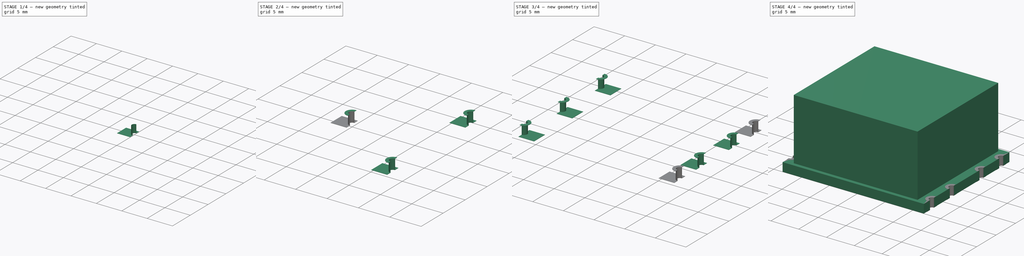
[diagram: build sequence overview — one tinted view per stage of 4, left to right]
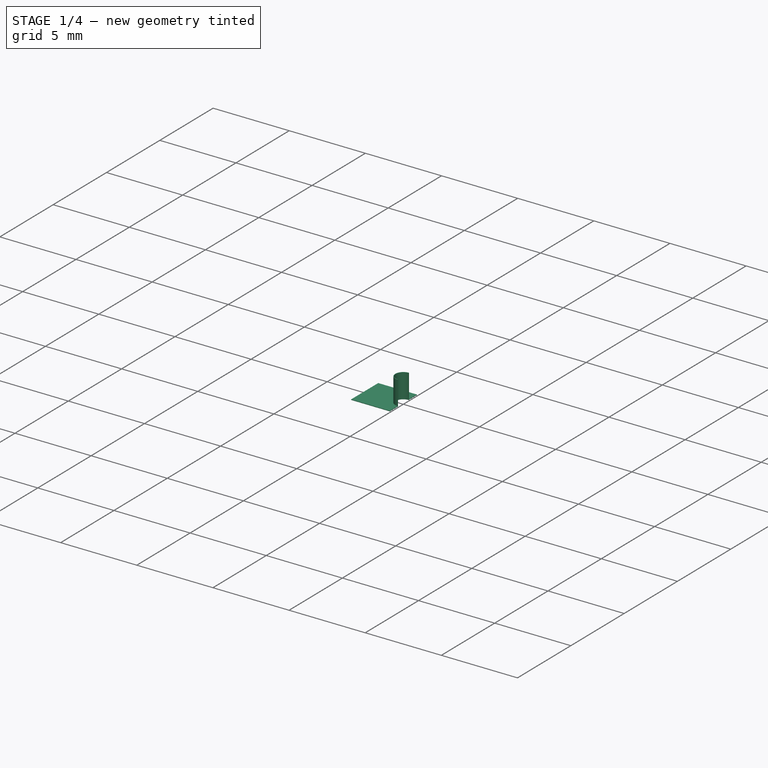
[diagram: stage 1 of 4 — iso view after this stage's code; geometry added in this stage tinted green]
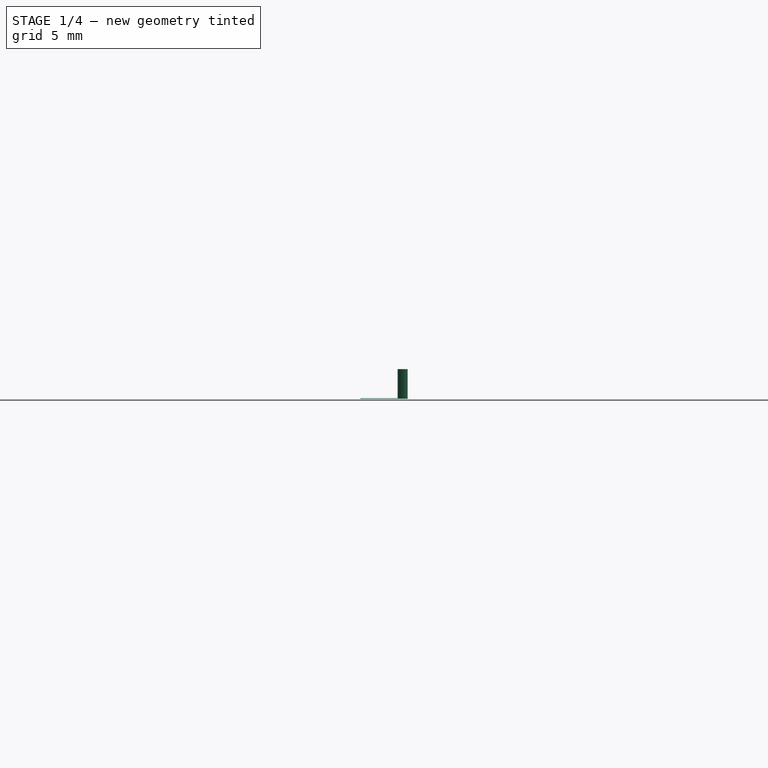
[diagram: stage 1 of 4 — front view after this stage's code; geometry added in this stage tinted green]
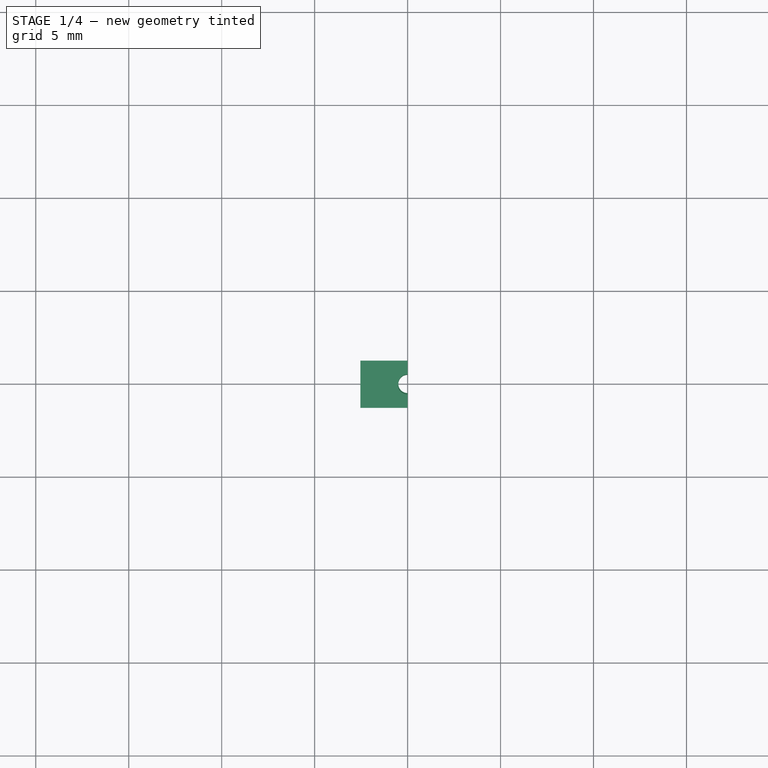
[diagram: stage 1 of 4 — top view after this stage's code; geometry added in this stage tinted green]
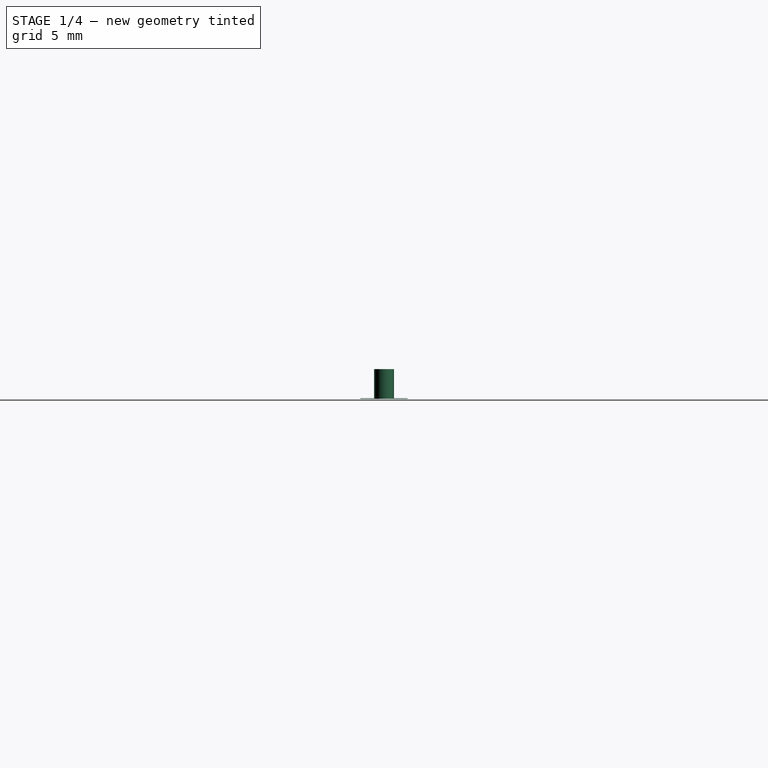
[diagram: stage 1 of 4 — right view after this stage's code; geometry added in this stage tinted green]
FCSTD DOCUMENT  (FreeCAD 1.0R38641 +468 (Git))
Label: cx210-1
License: All rights reserved
objects: Sketcher::SketchObject×5, PartDesign::Pad×5, PartDesign::Body×4, Part::FeaturePython×2, Spreadsheet::Sheet×1, Part::Mirroring×1, PartDesign::FeatureBase×1, Part::Compound×1
note: 35 computed .brp shape members not serialized (recipe doc carries the construction recipe); baked Part::Feature solids carry a one-line shape summary decoded from their .brp

FEATURE [PartDesign::Body] Body001
  AllowCompound = false
  Group = -> [Sketch003,Pad001]
  Origin = -> Origin001
  Tip = -> Pad001
FEATURE [Sketcher::SketchObject] Sketch004
  ArcFitTolerance = 1e-06
  AttachmentSupport = -> [XY_Plane002]
  FullyConstrained = true
  MakeInternals = false
  MapMode = 5
  expr: Constraints[11] = <<Master>>.pin_id
  sketch-geometry (7):
    g0: LineSegment StartX=-2.54 StartY=1.27 StartZ=0 EndX=-2.54 EndY=-1.27 EndZ=0
    g1: LineSegment StartX=-2.54 StartY=-1.27 StartZ=0 EndX=0 EndY=-1.27 EndZ=0
    g2: LineSegment StartX=0 StartY=-1.27 StartZ=0 EndX=0 EndY=-0.5 EndZ=0
    g3: LineSegment StartX=0 StartY=1.27 StartZ=0 EndX=-2.54 EndY=1.27 EndZ=0
    g4: ArcOfCircle CenterX=0 CenterY=0 CenterZ=0 NormalX=0 NormalY=0 NormalZ=1 AngleXU=0 Radius=0.5 StartAngle=1.5708 EndAngle=4.71239
    g5: LineSegment StartX=0 StartY=0.5 StartZ=0 EndX=0 EndY=1.27 EndZ=0
    g6: LineSegment [constr] StartX=0 StartY=0.5 StartZ=0 EndX=0 EndY=-0.5 EndZ=0
  constraints (19):
    c: Coincident(g0,g1)
    c: Coincident(g1,g2)
    c: Coincident(g5,g3)
    c: Coincident(g3,g0)
    c: Vertical(g2)
    c: Horizontal(g1)
    c: Horizontal(g3)
    c: Equal(g3,g0)
    c: Symmetric(g0,g0,g-1)
    c: DistanceX(g3,g3) = 2.54
    c: Vertical(g5)
    c: Diameter(g4) = 1
    c: Coincident(g6,g5)
    c: Coincident(g6,g2)
    c: Vertical(g6)
    c: Coincident(g4,g5)
    c: Coincident(g4,g2)
    c: PointOnObject(g-1,g6)
    c: Coincident(g4,g-1)
FEATURE [PartDesign::Pad] Pad002
  Direction = (0,0,1)
  Length = 0.0348
  Length2 = 10
  Profile = -> Sketch004
  ReferenceAxis = -> Sketch004 [N_Axis]
  Suppressed = false
  Type = 0
  expr: Length = <<Master>>.trace_h
FEATURE [Sketcher::SketchObject] Sketch005
  ArcFitTolerance = 1e-06
  AttachmentSupport = -> [XY_Plane002]
  FullyConstrained = true
  MakeInternals = false
  MapMode = 5
  expr: Constraints[10] = <<Master>>.pin_id
  expr: Constraints[11] = <<Master>>.pin_od
  sketch-geometry (4):
    g0: ArcOfCircle CenterX=0 CenterY=0 CenterZ=0 NormalX=0 NormalY=0 NormalZ=1 AngleXU=0 Radius=0.5348 StartAngle=1.5708 EndAngle=4.71239
    g1: ArcOfCircle CenterX=0 CenterY=0 CenterZ=0 NormalX=0 NormalY=0 NormalZ=1 AngleXU=0 Radius=0.5 StartAngle=1.5708 EndAngle=4.71239
    g2: LineSegment StartX=0 StartY=0.5348 StartZ=0 EndX=0 EndY=0.5 EndZ=0
    g3: LineSegment StartX=-1e-16 StartY=-0.5 StartZ=0 EndX=-1e-16 EndY=-0.5348 EndZ=0
  constraints (12):
    c: Coincident(g0,g-1)
    c: PointOnObject(g0,g-2)
    c: PointOnObject(g0,g-2)
    c: Coincident(g1,g0)
    c: PointOnObject(g1,g-2)
    c: PointOnObject(g1,g-2)
    c: Coincident(g2,g0)
    c: Coincident(g2,g1)
    c: Coincident(g3,g1)
    c: Coincident(g3,g0)
    c: Diameter(g1) = 1
    c: Diameter(g0) = 1.0696
FEATURE [PartDesign::Pad] Pad003
  BaseFeature = -> Pad002
  Direction = (0,0,1)
  Length = 1.6048
  Length2 = 10
  Profile = -> Sketch005
  ReferenceAxis = -> Sketch005 [N_Axis]
  Suppressed = false
  Type = 0
  expr: Length = <<Master>>.pcb_top
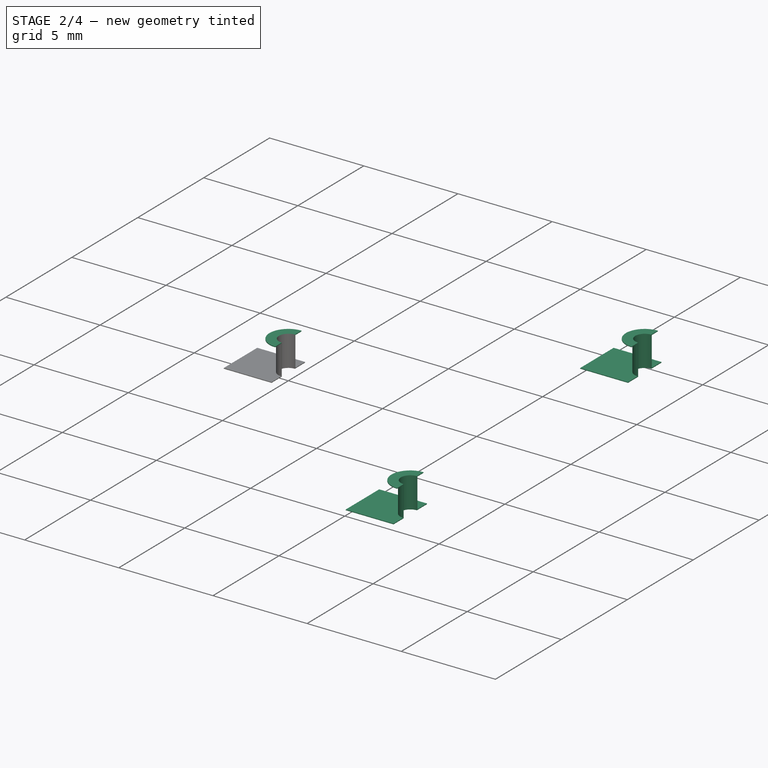
[diagram: stage 2 of 4 — iso view after this stage's code; geometry added in this stage tinted green]
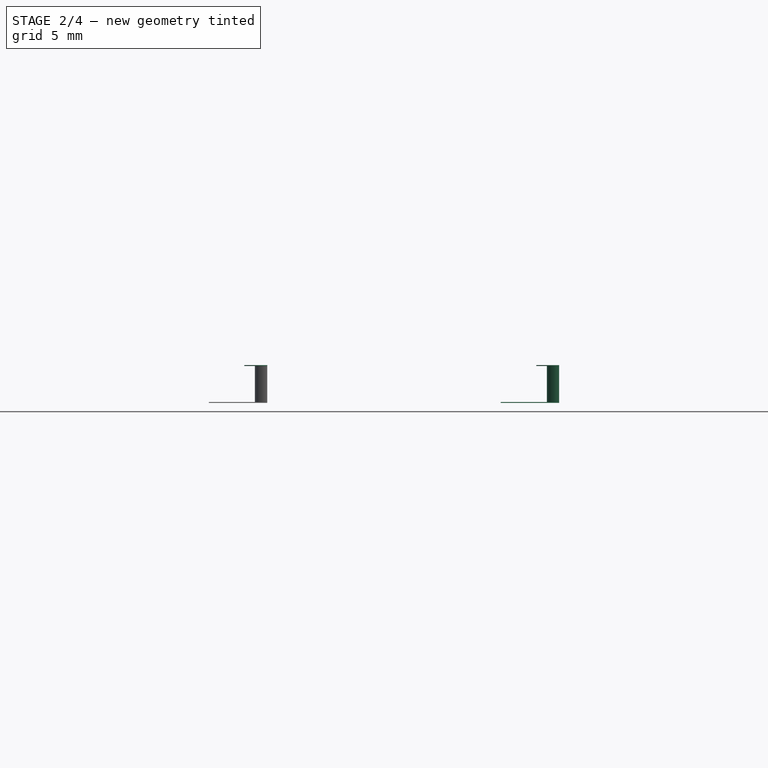
[diagram: stage 2 of 4 — front view after this stage's code; geometry added in this stage tinted green]
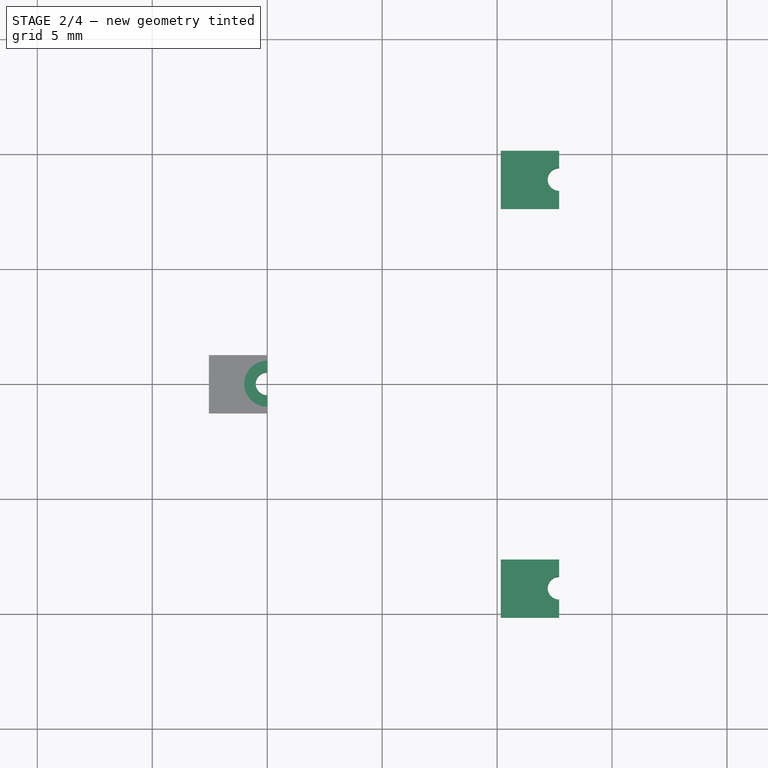
[diagram: stage 2 of 4 — top view after this stage's code; geometry added in this stage tinted green]
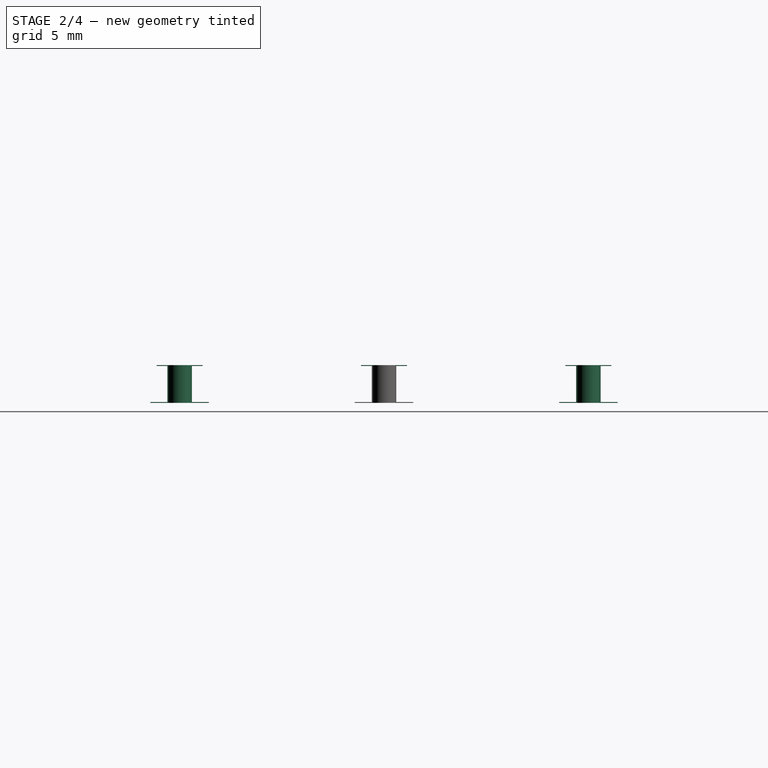
[diagram: stage 2 of 4 — right view after this stage's code; geometry added in this stage tinted green]
FEATURE [Sketcher::SketchObject] Sketch006
  ArcFitTolerance = 1e-06
  AttachmentOffset = pos=(0,0,1.6048) rot=(0,0,1;0rad)
  AttachmentSupport = -> [XY_Plane002]
  FullyConstrained = true
  MakeInternals = false
  MapMode = 5
  Placement = pos=(0,0,1.6048) rot=(0,0,1;0rad)
  expr: .AttachmentOffset.Base.z = <<Master>>.pcb_top
  expr: Constraints[10] = <<Master>>.pin_id
  sketch-geometry (4):
    g0: ArcOfCircle CenterX=0 CenterY=0 CenterZ=0 NormalX=0 NormalY=0 NormalZ=1 AngleXU=0 Radius=0.5 StartAngle=1.5708 EndAngle=4.71239
    g1: ArcOfCircle CenterX=0 CenterY=0 CenterZ=0 NormalX=0 NormalY=0 NormalZ=1 AngleXU=0 Radius=1 StartAngle=1.5708 EndAngle=4.71239
    g2: LineSegment StartX=1e-16 StartY=1 StartZ=0 EndX=0 EndY=0.5 EndZ=0
    g3: LineSegment StartX=-1e-16 StartY=-0.5 StartZ=0 EndX=-2e-16 EndY=-1 EndZ=0
  constraints (12):
    c: Coincident(g0,g-1)
    c: PointOnObject(g0,g-2)
    c: PointOnObject(g0,g-2)
    c: Coincident(g1,g0)
    c: PointOnObject(g1,g-2)
    c: PointOnObject(g1,g-2)
    c: Coincident(g2,g1)
    c: Coincident(g2,g0)
    c: Coincident(g3,g0)
    c: Coincident(g3,g1)
    c: Diameter(g0) = 1
    c: Diameter(g1) = 2
FEATURE [PartDesign::Pad] Pad004
  BaseFeature = -> Pad003
  Direction = (0,0,1)
  Length = 0.0348
  Length2 = 10
  Profile = -> Sketch006
  ReferenceAxis = -> Sketch006 [N_Axis]
  Refine = true
  Suppressed = false
  Type = 0
  expr: Length = <<Master>>.trace_h
FEATURE [PartDesign::Body] Body002
  AllowCompound = false
  Group = -> [Sketch004,Pad002,Sketch005,Pad003,Sketch006,Pad004]
  Origin = -> Origin002
  Tip = -> Pad004
FEATURE [Part::FeaturePython] Array  # Draft array (typed FeaturePython)
  Angle = 360
  ArrayType = 0
  Axis = (0,0,1)
  Base = -> Body002
  Center = (0,0,0)
  Count = 2
  Fuse = false
  IntervalAxis = (0,0,0)
  IntervalX = (100,0,0)
  IntervalY = (0,17.78,0)
  IntervalZ = (0,0,100)
  NumberCircles = 3
  NumberPolar = 5
  NumberX = 1
  NumberY = 2
  NumberZ = 1
  Placement = pos=(12.7,-8.89,0) rot=(0,0,1;0rad)
  RadialDistance = 50
  Symmetry = 1
  TangentialDistance = 25
  expr: .IntervalY.y = <<Master>>.pitch_12 * 2
  expr: .Placement.Base.x = <<Master>>.pcb_l / 2
  expr: .Placement.Base.y = -<<Master>>.pitch_12
FEATURE [PartDesign::FeatureBase] Clone
  BaseFeature = -> Body002
  Suppressed = false
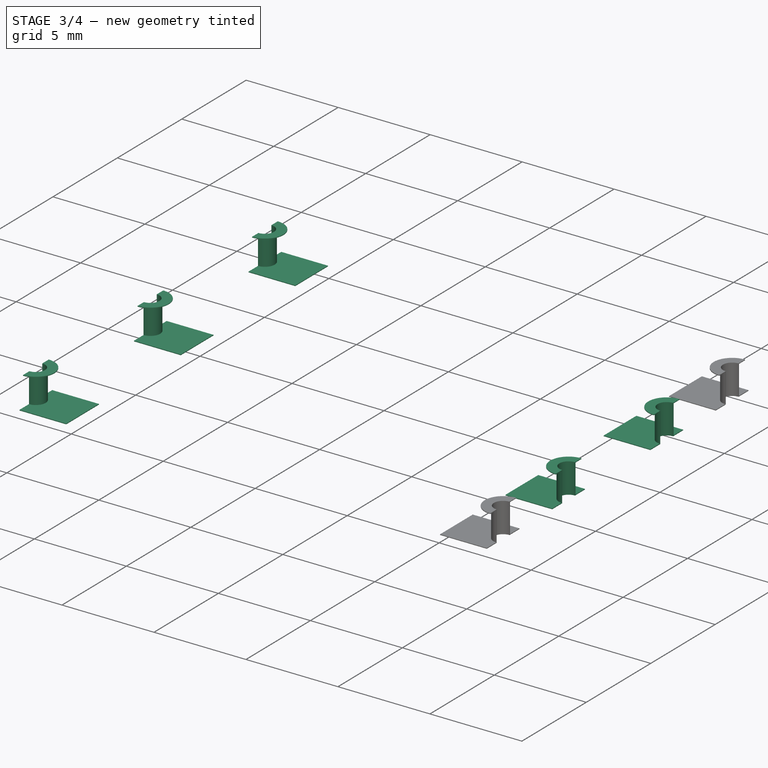
[diagram: stage 3 of 4 — iso view after this stage's code; geometry added in this stage tinted green]
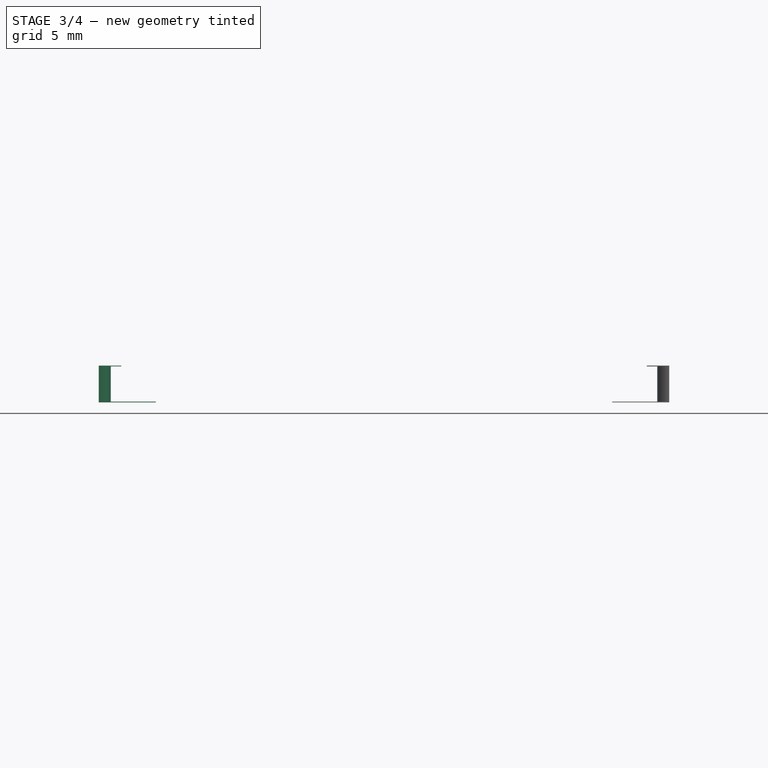
[diagram: stage 3 of 4 — front view after this stage's code; geometry added in this stage tinted green]
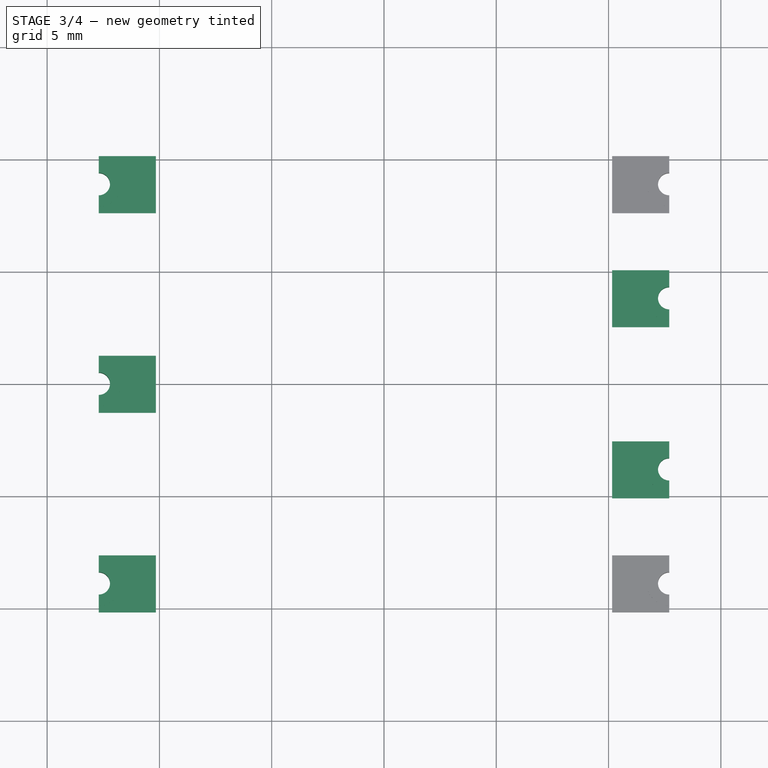
[diagram: stage 3 of 4 — top view after this stage's code; geometry added in this stage tinted green]
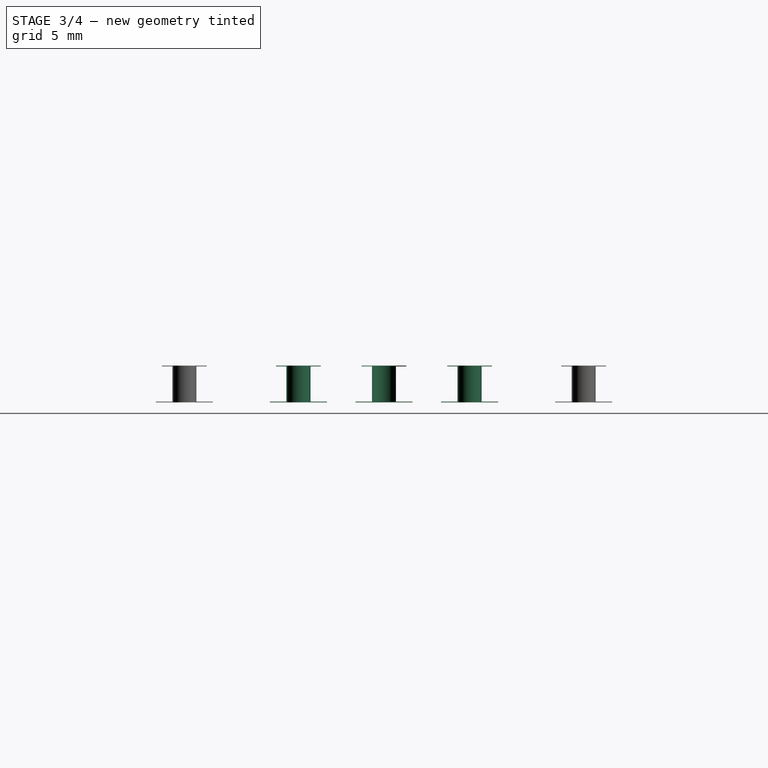
[diagram: stage 3 of 4 — right view after this stage's code; geometry added in this stage tinted green]
FEATURE [Part::FeaturePython] Array001  # Draft array (typed FeaturePython)
  Angle = 360
  ArrayType = 0
  Axis = (0,0,1)
  Base = -> Body002
  Center = (0,0,0)
  Count = 2
  Fuse = false
  IntervalAxis = (0,0,0)
  IntervalX = (100,0,0)
  IntervalY = (0,7.62,0)
  IntervalZ = (0,0,100)
  NumberCircles = 3
  NumberPolar = 5
  NumberX = 1
  NumberY = 2
  NumberZ = 1
  Placement = pos=(12.7,-3.81,0) rot=(0,0,1;0rad)
  RadialDistance = 50
  Symmetry = 1
  TangentialDistance = 25
  expr: .IntervalY.y = <<Master>>.pitch_56
  expr: .Placement.Base.x = <<Master>>.pcb_l / 2
  expr: .Placement.Base.y = -<<Master>>.pitch_56 / 2
FEATURE [Part::Mirroring] Part__Mirroring  label="Array (Mirror #1)"
  Base = (0,0,0)
  Normal = (1,0,0)
  Source = -> Array
FEATURE [PartDesign::Body] Body003
  AllowCompound = false
  Group = -> [Clone]
  Origin = -> Origin003
  Placement = pos=(-12.7,0,0) rot=(0,0,1;3.14159rad)
  Tip = -> Clone
  expr: .Placement.Base.x = -<<Master>>.pcb_l / 2
FEATURE [Part::Compound] Compound
  Links = -> [Array001,Part__Mirroring,Array,Body003]
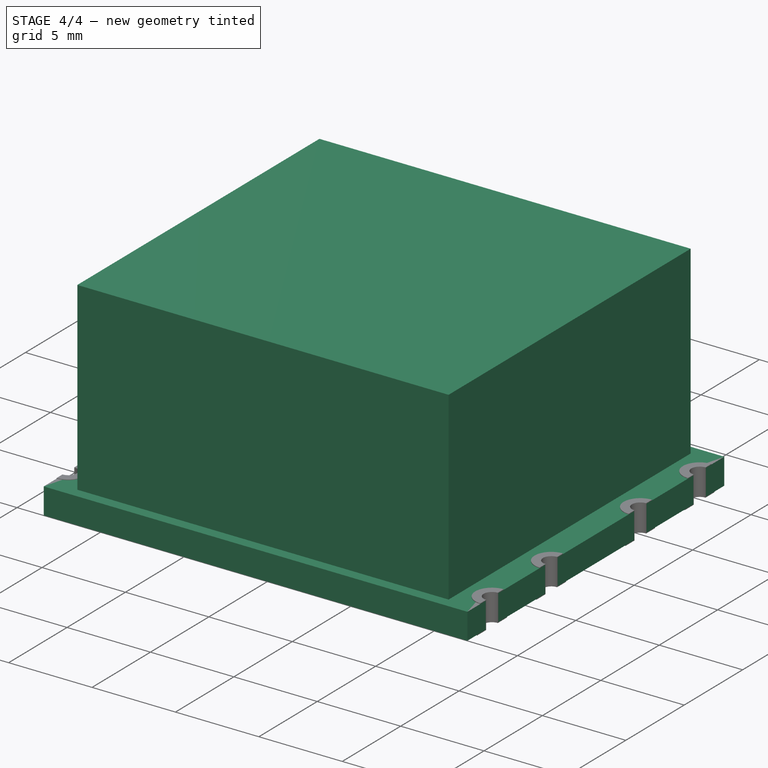
[diagram: stage 4 of 4 — iso view after this stage's code; geometry added in this stage tinted green]
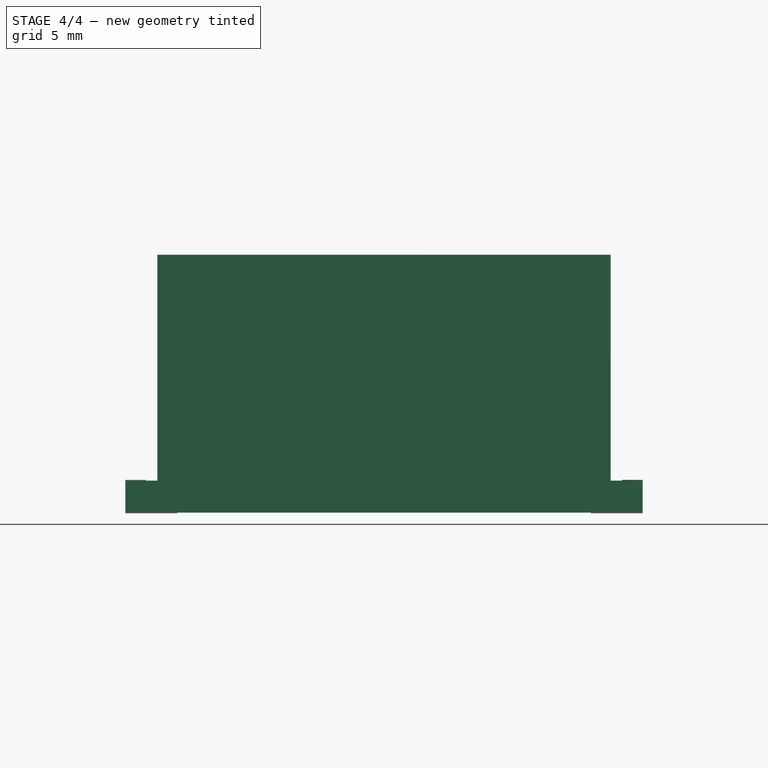
[diagram: stage 4 of 4 — front view after this stage's code; geometry added in this stage tinted green]
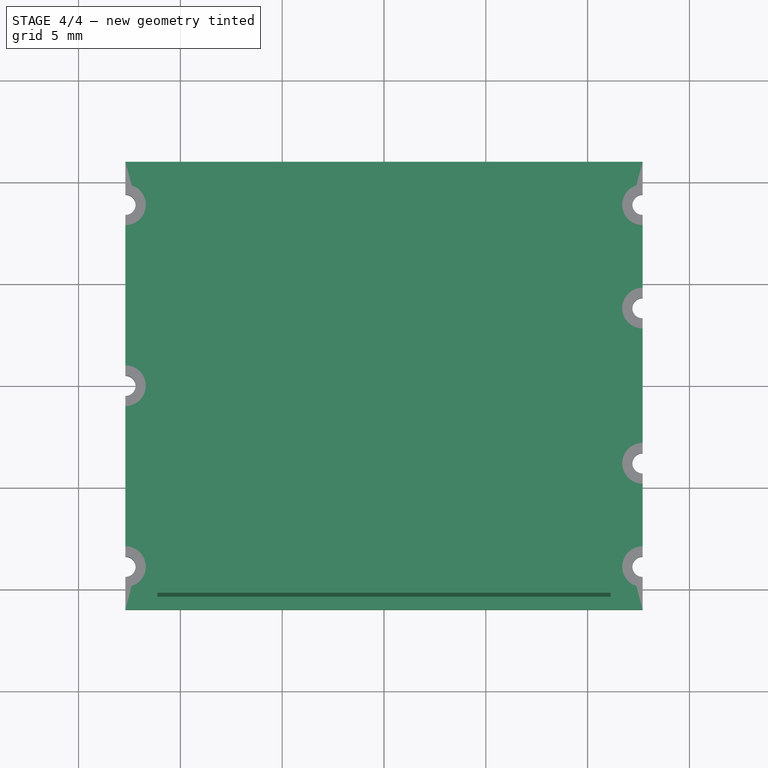
[diagram: stage 4 of 4 — top view after this stage's code; geometry added in this stage tinted green]
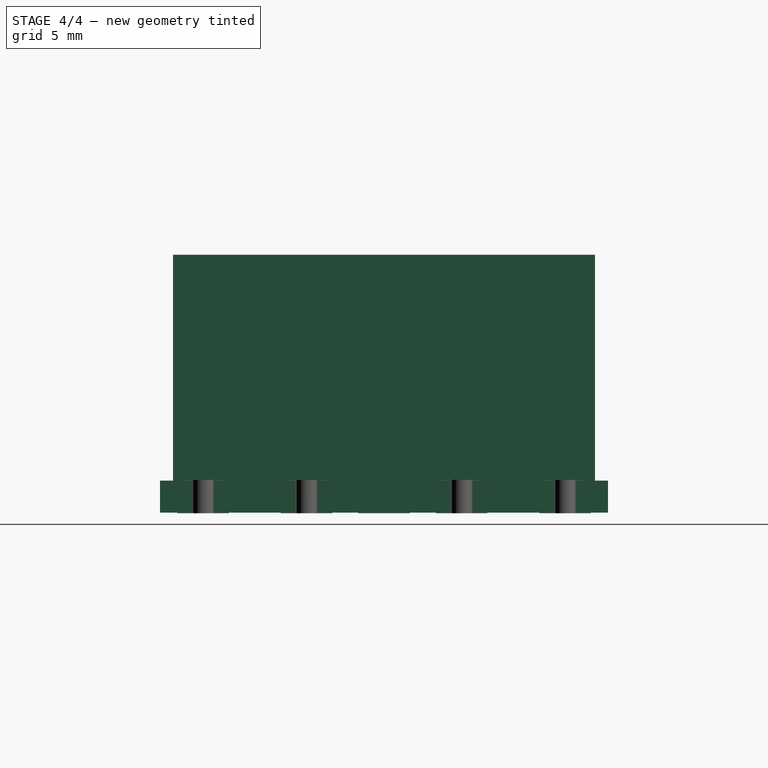
[diagram: stage 4 of 4 — right view after this stage's code; geometry added in this stage tinted green]
FEATURE [Spreadsheet::Sheet] Spreadsheet  label="Master"
  cells = A1='Constants; A2='height; B2(height)==12.7 mm; C2='Height of housing; A3='pcb h; B3(pcb_h)==1.57 mm; C3='pcb thickness; A4='pcb l; B4(pcb_l)==25.4 mm; C4='pcb length; A5='pcb w; B5(pcb_w)==22 mm; C5='pcb width; A6='trace h; B6(trace_h)==34.8 um; C6='trace thickness; A7='pin id; B7(pin_id)==1 mm; C7='Castellation hole diameter; A8='pitch 12; B8(pitch_12)==8.89 mm; C8='Pin pitch btw 1,2 2,3; A9='pitch 45; B9(pitch_45)==5.08 mm; C9='Pin pitch btw 4,5 6,7; A10='pitch 56; B10(pitch_56)==7.62 mm; C10='Pin pitch btw 5,6; A12='Calculated; A13='pcb top; B13(pcb_top)==pcb_h + trace_h; C13='Top of pcb; A14='pin od; B14(pin_od)==pin_id + 2 * trace_h; C14='Castellation hole drill diameter
FEATURE [Sketcher::SketchObject] Sketch
  ArcFitTolerance = 1e-06
  AttachmentOffset = pos=(0,0,0.0348) rot=(0,0,1;0rad)
  AttachmentSupport = -> [XY_Plane]
  FullyConstrained = true
  MakeInternals = false
  MapMode = 5
  Placement = pos=(0,0,0.0348) rot=(0,0,1;0rad)
  expr: .AttachmentOffset.Base.z = <<Master>>.trace_h
  expr: Constraints[10] = <<Master>>.pcb_w
  expr: Constraints[11] = <<Master>>.pin_od
  expr: Constraints[69] = <<Master>>.pitch_12
  expr: Constraints[70] = <<Master>>.pitch_56
  expr: Constraints[71] = <<Master>>.pitch_45
  expr: Constraints[9] = <<Master>>.pcb_l
  sketch-geometry (25):
    g0: LineSegment StartX=-12.7 StartY=11 StartZ=0 EndX=-12.7 EndY=9.4248 EndZ=0
    g1: LineSegment StartX=-12.7 StartY=-11 StartZ=0 EndX=12.7 EndY=-11 EndZ=0
    g2: LineSegment StartX=12.7 StartY=-11 StartZ=0 EndX=12.7 EndY=-9.4248 EndZ=0
    g3: LineSegment StartX=12.7 StartY=11 StartZ=0 EndX=-12.7 EndY=11 EndZ=0
    g4: ArcOfCircle CenterX=-12.7 CenterY=0 CenterZ=0 NormalX=0 NormalY=0 NormalZ=1 AngleXU=0 Radius=0.5348 StartAngle=4.71239 EndAngle=7.85398
    g5: LineSegment StartX=-12.7 StartY=-0.5348 StartZ=0 EndX=-12.7 EndY=-8.3552 EndZ=0
    g6: LineSegment [constr] StartX=-12.7 StartY=0.5348 StartZ=0 EndX=-12.7 EndY=-0.5348 EndZ=0
    g7: ArcOfCircle CenterX=-12.7 CenterY=8.89 CenterZ=0 NormalX=0 NormalY=0 NormalZ=1 AngleXU=0 Radius=0.5348 StartAngle=4.71239 EndAngle=7.85398
    g8: LineSegment StartX=-12.7 StartY=8.3552 StartZ=0 EndX=-12.7 EndY=0.5348 EndZ=0
    g9: LineSegment [constr] StartX=-12.7 StartY=9.4248 StartZ=0 EndX=-12.7 EndY=8.3552 EndZ=0
    g10: ArcOfCircle CenterX=-12.7 CenterY=-8.89 CenterZ=0 NormalX=0 NormalY=0 NormalZ=1 AngleXU=0 Radius=0.5348 StartAngle=4.71239 EndAngle=7.85398
    g11: ArcOfCircle CenterX=12.7 CenterY=-8.89 CenterZ=0 NormalX=0 NormalY=0 NormalZ=1 AngleXU=0 Radius=0.5348 StartAngle=1.5708 EndAngle=4.71239
    g12: ArcOfCircle CenterX=12.7 CenterY=-3.81 CenterZ=0 NormalX=0 NormalY=0 NormalZ=1 AngleXU=0 Radius=0.5348 StartAngle=1.5708 EndAngle=4.71239
    g13: ArcOfCircle CenterX=12.7 CenterY=3.81 CenterZ=0 NormalX=0 NormalY=0 NormalZ=1 AngleXU=0 Radius=0.5348 StartAngle=1.5708 EndAngle=4.71239
    g14: ArcOfCircle CenterX=12.7 CenterY=8.89 CenterZ=0 NormalX=0 NormalY=0 NormalZ=1 AngleXU=0 Radius=0.5348 StartAngle=1.5708 EndAngle=4.71239
    g15: LineSegment StartX=-12.7 StartY=-9.4248 StartZ=0 EndX=-12.7 EndY=-11 EndZ=0
    g16: LineSegment StartX=12.7 StartY=9.4248 StartZ=0 EndX=12.7 EndY=11 EndZ=0
    g17: LineSegment StartX=12.7 StartY=4.3448 StartZ=0 EndX=12.7 EndY=8.3552 EndZ=0
    g18: LineSegment StartX=12.7 StartY=-3.2752 StartZ=0 EndX=12.7 EndY=3.2752 EndZ=0
    g19: LineSegment StartX=12.7 StartY=-8.3552 StartZ=0 EndX=12.7 EndY=-4.3448 EndZ=0
    g20: LineSegment [constr] StartX=-12.7 StartY=-8.3552 StartZ=0 EndX=-12.7 EndY=-9.4248 EndZ=0
    g21: LineSegment [constr] StartX=12.7 StartY=-8.3552 StartZ=0 EndX=12.7 EndY=-9.4248 EndZ=0
    g22: LineSegment [constr] StartX=12.7 StartY=-4.3448 StartZ=0 EndX=12.7 EndY=-3.2752 EndZ=0
    g23: LineSegment [constr] StartX=12.7 StartY=3.2752 StartZ=0 EndX=12.7 EndY=4.3448 EndZ=0
    g24: LineSegment [constr] StartX=12.7 StartY=8.3552 StartZ=0 EndX=12.7 EndY=9.4248 EndZ=0
  constraints (73):
    c: Coincident(g15,g1)
    c: Coincident(g1,g2)
    c: Coincident(g16,g3)
    c: Coincident(g3,g0)
    c: Vertical(g0)
    c: Vertical(g2)
    c: Horizontal(g1)
    c: Horizontal(g3)
    c: Symmetric(g15,g16,g-1)
    c: Distance(g3,g3) = 25.4
    c: Distance(g0,g15) = 22
    c: Diameter(g4) = 1.0696
    c: Coincident(g8,g4)
    c: Coincident(g6,g8)
    c: Coincident(g6,g4)
    c: Vertical(g6)
    c: Vertical(g5)
    c: Equal(g7,g4)
    c: Coincident(g0,g7)
    c: Coincident(g9,g0)
    c: Coincident(g9,g7)
    c: Vertical(g9)
    c: Equal(g10,g11)
    c: Equal(g11,g12)
    c: Equal(g12,g13)
    c: Equal(g13,g14)
    c: Equal(g10,g4)
    c: Coincident(g11,g2)
    c: Coincident(g11,g19)
    c: Coincident(g12,g19)
    c: Coincident(g12,g18)
    c: Coincident(g13,g18)
    c: Coincident(g13,g17)
    c: Coincident(g14,g17)
    c: Coincident(g14,g16)
    c: Coincident(g10,g5)
    c: Coincident(g10,g15)
    c: Coincident(g20,g5)
    c: Coincident(g20,g10)
    c: Vertical(g20)
    c: Coincident(g21,g11)
    c: Coincident(g21,g2)
    c: Vertical(g21)
    c: Coincident(g22,g12)
    c: Coincident(g22,g12)
    c: Vertical(g22)
    c: Coincident(g23,g13)
    c: Coincident(g23,g13)
    c: Vertical(g23)
    c: Coincident(g24,g14)
    c: Coincident(g24,g14)
    c: Vertical(g24)
    c: Coincident(g7,g8)
    c: Vertical(g8)
    c: PointOnObject(g7,g9)
    c: Vertical(g15)
    c: PointOnObject(g4,g6)
    c: PointOnObject(g4,g-1)
    c: PointOnObject(g10,g20)
    c: PointOnObject(g11,g21)
    c: PointOnObject(g12,g22)
    c: PointOnObject(g13,g23)
    c: PointOnObject(g14,g24)
    c: Vertical(g16)
    c: Vertical(g17)
    c: Vertical(g19)
    c: Equal(g8,g5)
    c: Equal(g17,g19)
    c: Symmetric(g13,g12,g-1)
    c: DistanceY(g4,g7) = 8.89
    c: DistanceY(g12,g13) = 7.62
    c: DistanceY(g11,g12) = 5.08
    c: Coincident(g5,g4)
FEATURE [PartDesign::Pad] Pad
  Direction = (0,0,1)
  Length = 1.57
  Length2 = 10
  Profile = -> Sketch
  ReferenceAxis = -> Sketch [N_Axis]
  Suppressed = false
  Type = 0
  expr: Length = <<Master>>.pcb_h
FEATURE [PartDesign::Body] Body
  AllowCompound = false
  Group = -> [Sketch,Pad]
  Origin = -> Origin
  Tip = -> Pad
FEATURE [Sketcher::SketchObject] Sketch003
  ArcFitTolerance = 0
  AttachmentOffset = pos=(0,0,1.6048) rot=(0,0,1;0rad)
  AttachmentSupport = -> [XY_Plane001]
  FullyConstrained = true
  MakeInternals = false
  MapMode = 5
  Placement = pos=(0,0,1.6048) rot=(0,0,1;0rad)
  expr: .AttachmentOffset.Base.z = <<Master>>.pcb_top
  expr: Constraints[8] = <<Master>>.pcb_l
  expr: Constraints[9] = <<Master>>.pcb_w
  sketch-geometry (8):
    g0: LineSegment [constr] StartX=-12.7 StartY=11 StartZ=0 EndX=-12.7 EndY=-11 EndZ=0
    g1: LineSegment [constr] StartX=-12.7 StartY=-11 StartZ=0 EndX=12.7 EndY=-11 EndZ=0
    g2: LineSegment [constr] StartX=12.7 StartY=-11 StartZ=0 EndX=12.7 EndY=11 EndZ=0
    g3: LineSegment [constr] StartX=12.7 StartY=11 StartZ=0 EndX=-12.7 EndY=11 EndZ=0
    g4: LineSegment StartX=-11.13 StartY=10.365 StartZ=0 EndX=-11.13 EndY=-10.365 EndZ=0
    g5: LineSegment StartX=-11.13 StartY=-10.365 StartZ=0 EndX=11.13 EndY=-10.365 EndZ=0
    g6: LineSegment StartX=11.13 StartY=-10.365 StartZ=0 EndX=11.13 EndY=10.365 EndZ=0
    g7: LineSegment StartX=11.13 StartY=10.365 StartZ=0 EndX=-11.13 EndY=10.365 EndZ=0
  constraints (22):
    c: Coincident(g0,g1)
    c: Coincident(g1,g2)
    c: Coincident(g2,g3)
    c: Coincident(g3,g0)
    c: Vertical(g0)
    c: Vertical(g2)
    c: Horizontal(g1)
    c: Horizontal(g3)
    c: DistanceX(g3,g3) = 25.4
    c: DistanceY(g0,g0) = 22
    c: Coincident(g4,g5)
    c: Coincident(g5,g6)
    c: Coincident(g6,g7)
    c: Coincident(g7,g4)
    c: Vertical(g4)
    c: Vertical(g6)
    c: Horizontal(g5)
    c: Horizontal(g7)
    c: DistanceY(g1,g5) = 0.635
    c: DistanceX(g6,g2) = 1.57
    c: Symmetric(g0,g2,g-1)
    c: Symmetric(g6,g4,g-1)
FEATURE [PartDesign::Pad] Pad001
  Direction = (0,0,1)
  Length = 11.0952
  Length2 = 10
  Profile = -> Sketch003
  ReferenceAxis = -> Sketch003 [N_Axis]
  Suppressed = false
  Type = 0
  expr: Length = <<Master>>.height - <<Master>>.pcb_top
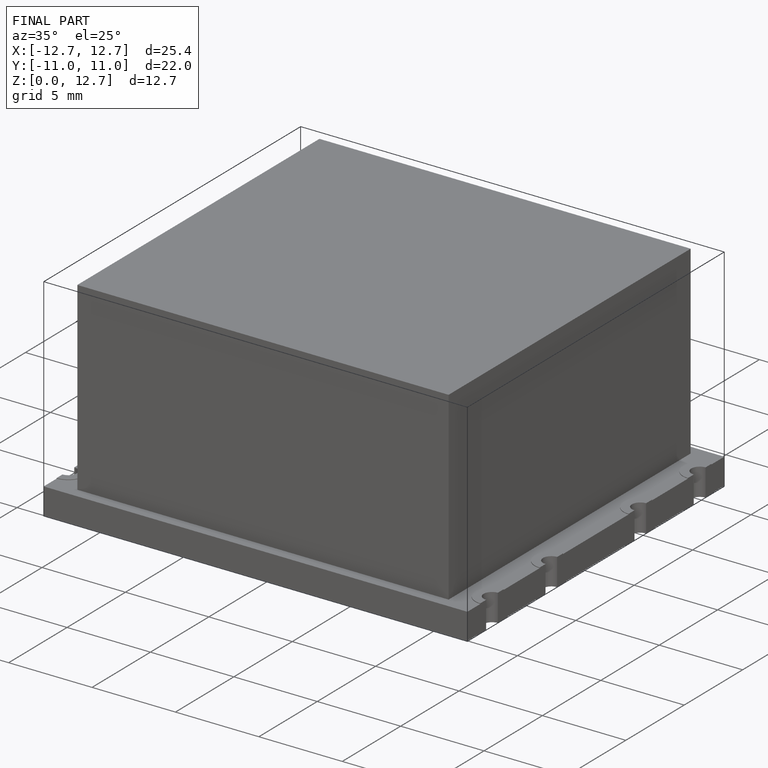
[diagram: finished part — iso view with bounding-box wireframe]
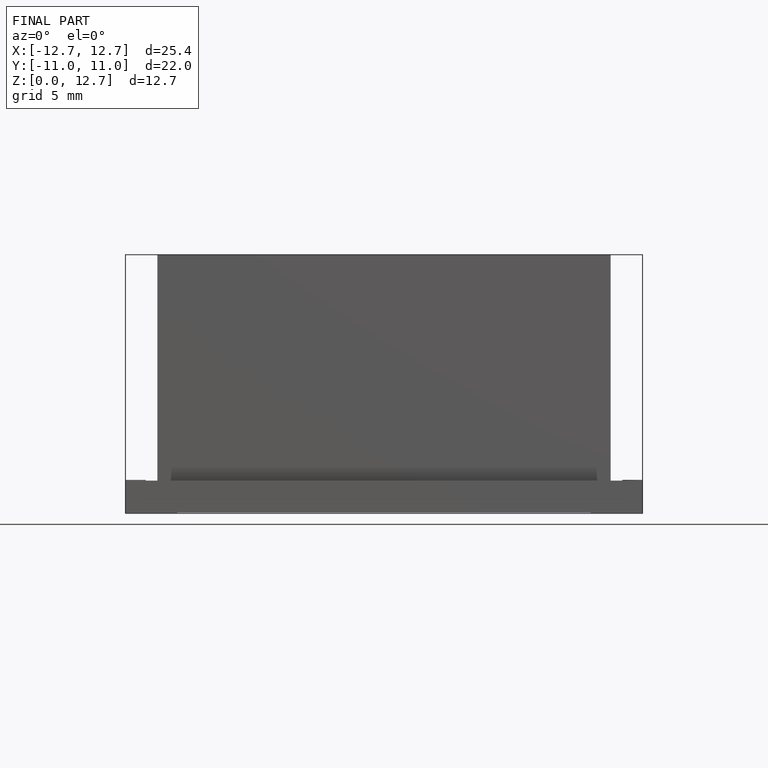
[diagram: finished part — front view with bounding-box wireframe]
